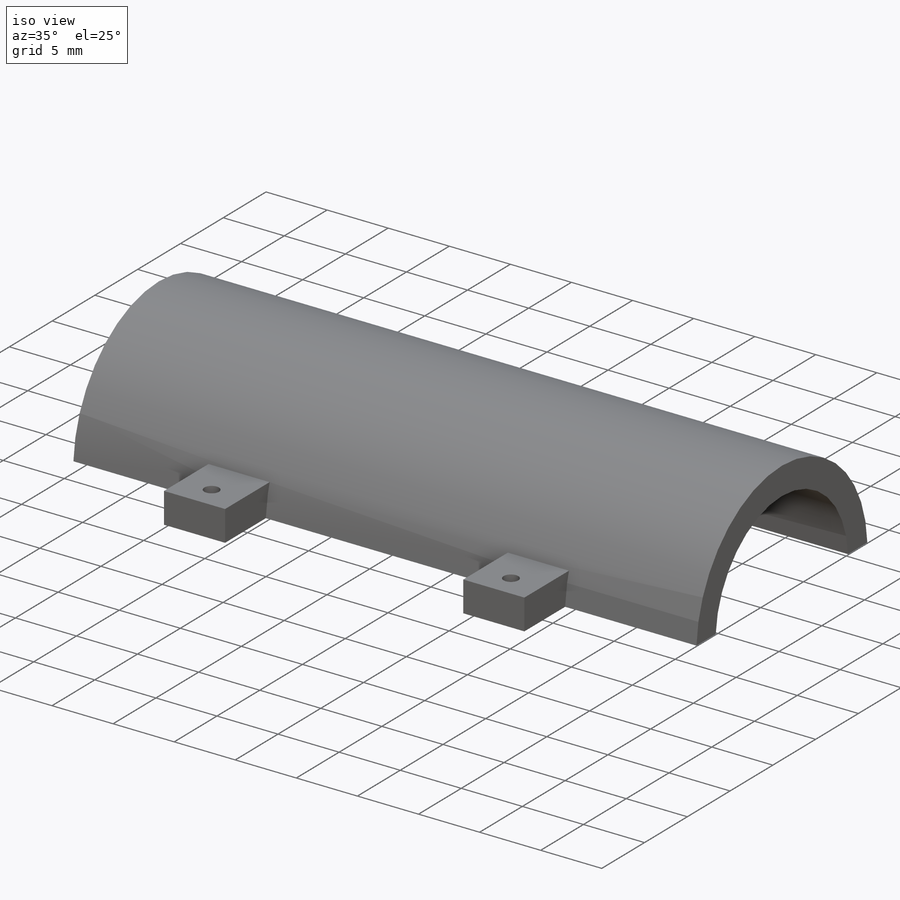
[diagram: iso view]
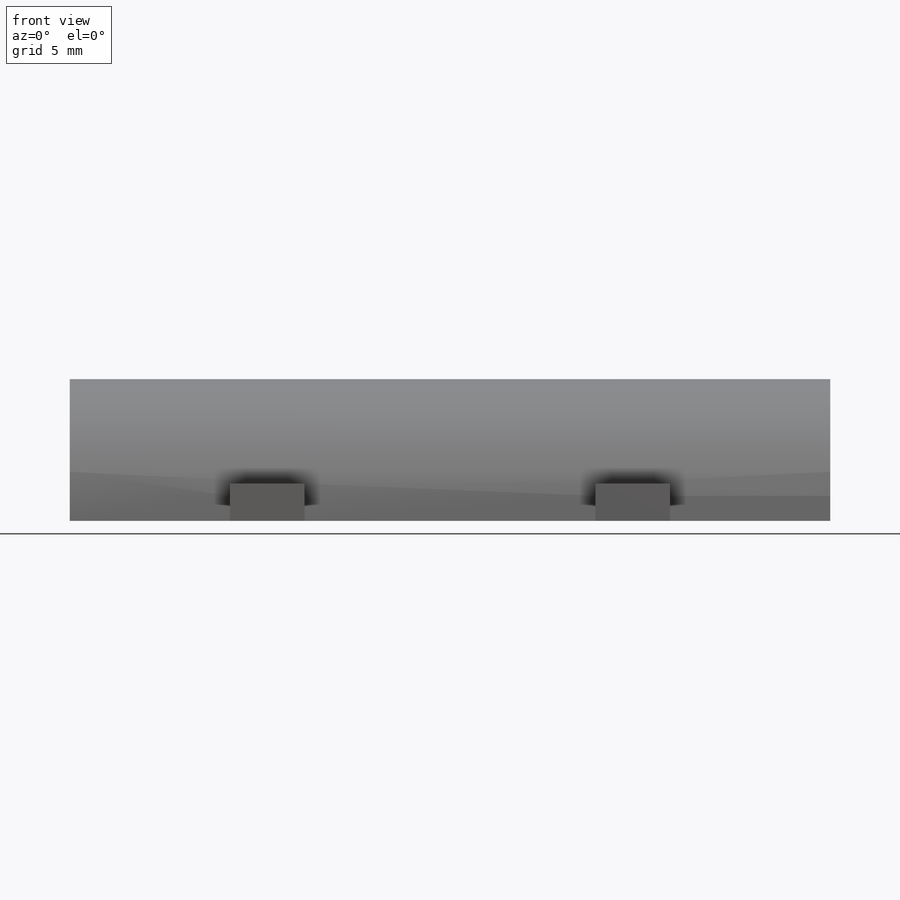
[diagram: front view]
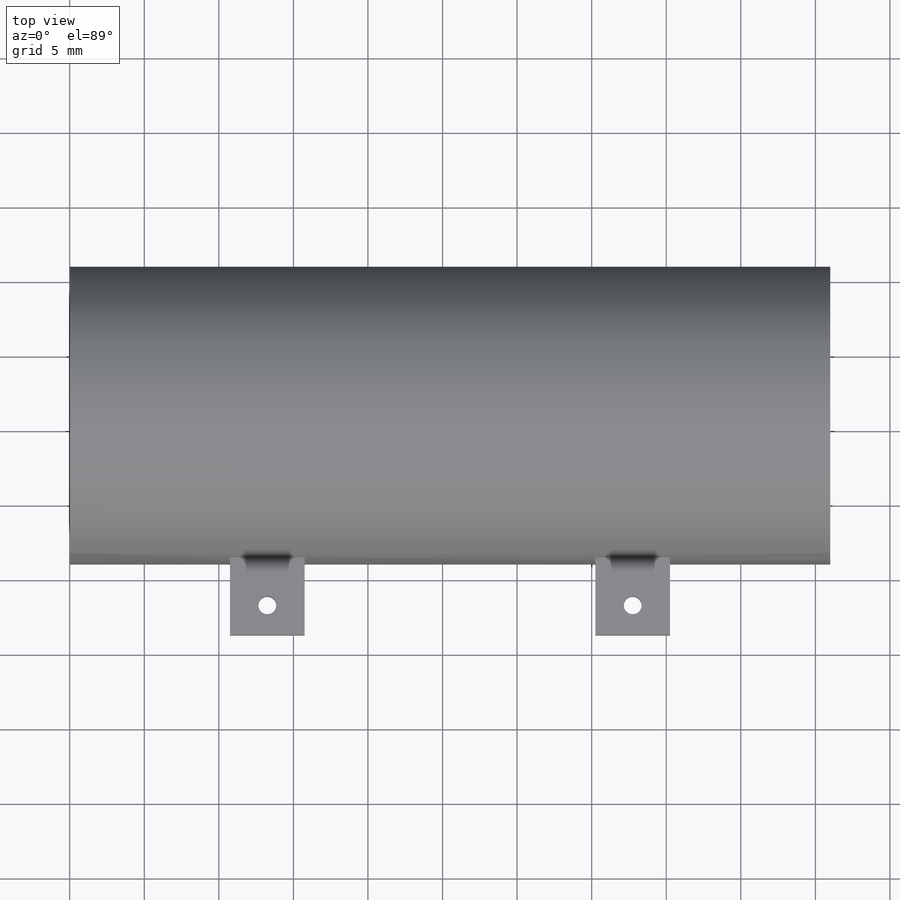
[diagram: top view]
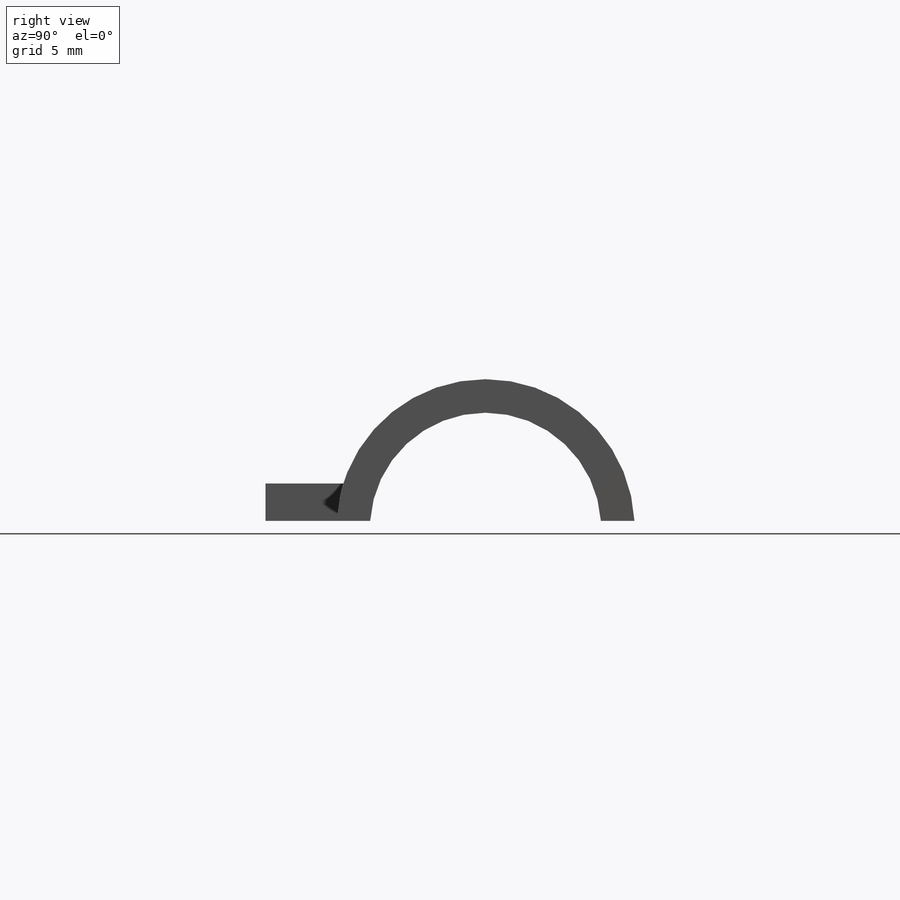
[diagram: right view]
SOLIDWORKS PART (.sldprt)
format: sldprt  version: not decoded by parser v0  size: 404,480 bytes
history: native  units: mm
features: sketch x20, cut_extrude x11, extrude x9, material x1 (+12 scaffold rows collapsed)
feature tree (53):
  scaffold x12  (default folders/planes/origin — collapsed)
  material  "Material <not specified>"
  sketch  "Sketch1"  dims[D1=34.0mm D2=30.0mm]
  extrude  "Boss-Extrude2"  Depth=51mm
  sketch  "Sketch3"  dims[c1.D1=~3.513774mm c1.D2=5.1mm c2.D1=7.5mm c2.D3=25.5mm]
  cut_extrude  "Cut-Extrude3"  Depth=10mm
  sketch  "Sketch5"  dims[c1.D1=~6.380989mm c1.D3=15.5mm c2.D1=17.0mm c2.D2=10.0mm]
  cut_extrude  "Cut-Extrude4"  Depth=51mm
  sketch  "Sketch6"  dims[D1=7.0mm]
  cut_extrude  "Cut-Extrude6"  Depth=51mm
  sketch  "Sketch7"
  cut_extrude  "Cut-Extrude7"  Depth=51mm
  sketch  "Sketch8"  dims[D1=7.5mm D2=3.75mm D3=1.0mm D4=1.0mm]
  cut_extrude  "Cut-Extrude9"  Depth=1.5mm
  sketch  "Sketch10"  dims[D1=3.0mm D2=3.0mm D3=6.0mm]
  extrude  "Boss-Extrude5"  Depth=51mm
  sketch  "Sketch11"
  cut_extrude  "Cut-Extrude10"  Depth=13mm
  sketch  "Sketch12"
  cut_extrude  "Cut-Extrude11"  Depth=13mm
  sketch  "Sketch13"  dims[D1=2.0mm D2=11.5mm D3=11.5mm D4=0.0mm D5=0.0mm]
  cut_extrude  "Cut-Extrude12"  Depth=2mm
  sketch  "Sketch15"
  cut_extrude  "Cut-Extrude13"  Depth=11mm
  sketch  "Sketch17"
  extrude  "Boss-Extrude6"  Depth=2.25mm
  sketch  "Sketch19"
  extrude  "Boss-Extrude7"  Depth=2.25mm
  sketch  "Sketch20"
  extrude  "Boss-Extrude8"  Depth=2.25mm
  sketch  "Sketch21"  dims[D1=~10.283448mm]
  extrude  "Boss-Extrude9"  Depth=2.25mm
  sketch  "Sketch22"
  extrude  "Boss-Extrude10"  Depth=1mm
  sketch  "Sketch24"
  extrude  "Boss-Extrude11"  Depth=1mm
  sketch  "Sketch25"  dims[c1.D1=~1.818653mm c1.D5=~0.799596mm c2.D1=2.5mm c2.D2=2.5mm c2.D3=2.0mm c2.D4=~3.210608mm c2.D5=2.5mm]
  cut_extrude  "Cut-Extrude14"  Depth=20mm
  sketch  "Sketch26"  dims[D1=5.1mm]
  extrude  "Boss-Extrude12"  Depth=1.5mm
  sketch  "Sketch27"  dims[D1=0.5mm D2=0.5mm]
  cut_extrude  "Cut-Extrude17"  Depth=60mm
decode coverage: 31 of 40 modeling features carry decoded parameters
note: ~ marks probable driven/reference dimensions
note: suppression state not decoded; provenance and decode notes live in map.json
